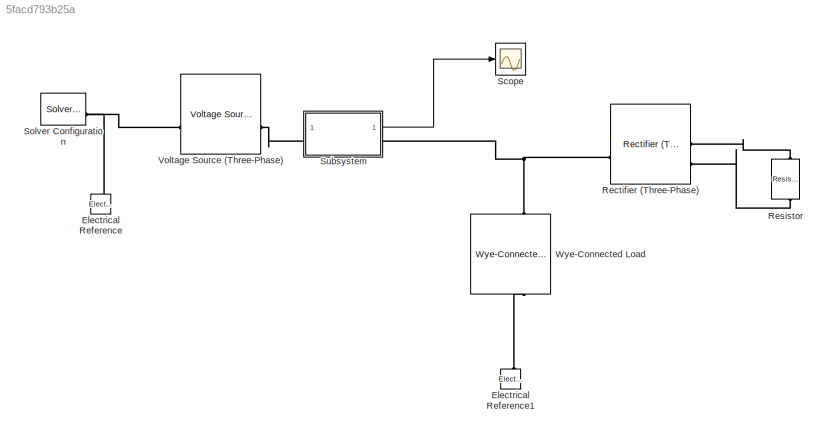
MODEL slx_5facd793b25a
KIND model
CONFIG AbsTol = auto
CONFIG EnableMultiTasking = off
CONFIG FixedStep = auto
CONFIG MaxStep = auto
CONFIG MinStep = auto
CONFIG RelTol = 1e-3
CONFIG SampleTimeConstraint = Unconstrained
CONFIG SolverName = VariableStepAuto
CONFIG StartTime = 0.0
CONFIG StopTime = 1
BLOCK [Reference] Electrical Reference  REF=fl_lib/Electrical/Electrical Elements/Electrical Reference
  NameLocation = right
  SourceBlock = fl_lib/Electrical/Electrical Elements/Electrical Reference
  SourceType = Electrical Reference
BLOCK [Reference] Electrical Reference1  REF=fl_lib/Electrical/Electrical Elements/Electrical Reference
  NameLocation = right
  SourceBlock = fl_lib/Electrical/Electrical Elements/Electrical Reference
  SourceType = Electrical Reference
BLOCK [Reference] Rectifier (Three-Phase)  REF=ee_lib/Semiconductors &
Converters/Converters/Rectifier
(Three-Phase)
  SourceBlock = ee_lib/Semiconductors &\nConverters/Converters/Rectifier\n(Three-Phase)
  SourceType = Rectifier\n(Three-Phase)
BLOCK [Reference] Resistor  REF=fl_lib/Electrical/Electrical Elements/Resistor
  NameLocation = left
  SourceBlock = fl_lib/Electrical/Electrical Elements/Resistor
  SourceType = Resistor
BLOCK [Scope] Scope
  Floating = off
  NumInputPorts = 1
  ScopeSpecificationString = Simulink.scopes.TimeScopeBlockCfg('CurrentConfiguration', extmgr.ConfigurationSet(extmgr.Configuration('Core','General UI',true),extmgr.Configuration('Core','Source UI',true),extmgr.Configuration('Sources','WiredSimulink',true),extmgr.Configuration('Visuals','Time Domain',true),extmgr.Configuration('Tools','Plot Navigation',true),extmgr.Configuration('Tools','Measurements',true)),'Version','2024a'...<+1ch>
BLOCK [Reference] Solver Configuration  REF=nesl_utility/Solver
Configuration
  SourceBlock = nesl_utility/Solver\nConfiguration
  SourceType = Solver\nConfiguration
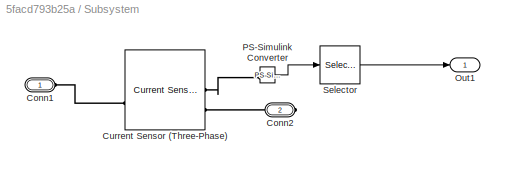
BLOCK [SubSystem] Subsystem
BLOCK [PMIOPort] Subsystem/Conn1
  Side = Left
BLOCK [PMIOPort] Subsystem/Conn2
  Port = 2
  Side = Right
BLOCK [Reference] Subsystem/Current Sensor (Three-Phase)  REF=ee_lib/Sensors &
Transducers/Current Sensor
(Three-Phase)
  SourceBlock = ee_lib/Sensors &\nTransducers/Current Sensor\n(Three-Phase)
  SourceType = Current Sensor\n(Three-Phase)
BLOCK [Outport] Subsystem/Out1
BLOCK [Reference] Subsystem/PS-Simulink Converter  REF=nesl_utility/PS-Simulink
Converter
  SourceBlock = nesl_utility/PS-Simulink\nConverter
  SourceType = PS-Simulink\nConverter
BLOCK [Selector] Subsystem/Selector
  IndexOptions = Index vector (dialog)
  Indices = 1
  InputPortWidth = 3
  OutputSizes = 1
BLOCK [Reference] Voltage Source (Three-Phase)  REF=ee_lib/Sources/Voltage
Source
(Three-Phase)
  SourceBlock = ee_lib/Sources/Voltage\nSource\n(Three-Phase)
  SourceType = Voltage\nSource\n(Three-Phase)
BLOCK [Reference] Wye-Connected Load  REF=ee_lib/Passive/RLC Assemblies/Wye-Connected Load
  NameLocation = left
  SourceBlock = ee_lib/Passive/RLC Assemblies/Wye-Connected Load
  SourceType = Wye-Connected Load
LINE Subsystem/PS-Simulink Converter:1 -> Subsystem/Selector:1
LINE Subsystem/Selector:1 -> Subsystem/Out1:1
LINE Subsystem:1 -> Scope:1
PLINE Electrical Reference1:LConn1 -- Wye-Connected Load:RConn1
PNET net1: Electrical Reference:LConn1 -- Solver Configuration:RConn1 -- Voltage Source (Three-Phase):LConn1
PNET net2: Rectifier (Three-Phase):LConn1 -- Subsystem:RConn1 -- Wye-Connected Load:LConn1
PLINE Rectifier (Three-Phase):RConn1 -- Resistor:LConn1
PLINE Rectifier (Three-Phase):RConn2 -- Resistor:RConn1
PLINE Subsystem/Conn1:RConn1 -- Subsystem/Current Sensor (Three-Phase):LConn1
PLINE Subsystem/Conn2:RConn1 -- Subsystem/Current Sensor (Three-Phase):RConn2
PLINE Subsystem/Current Sensor (Three-Phase):RConn1 -- Subsystem/PS-Simulink Converter:LConn1
PLINE Subsystem:LConn1 -- Voltage Source (Three-Phase):RConn1
note: PNET lines group multi-terminal physical nets as a canonical sorted terminal list (undirected conserving connections); 2-terminal nets keep the pairwise PLINE form
